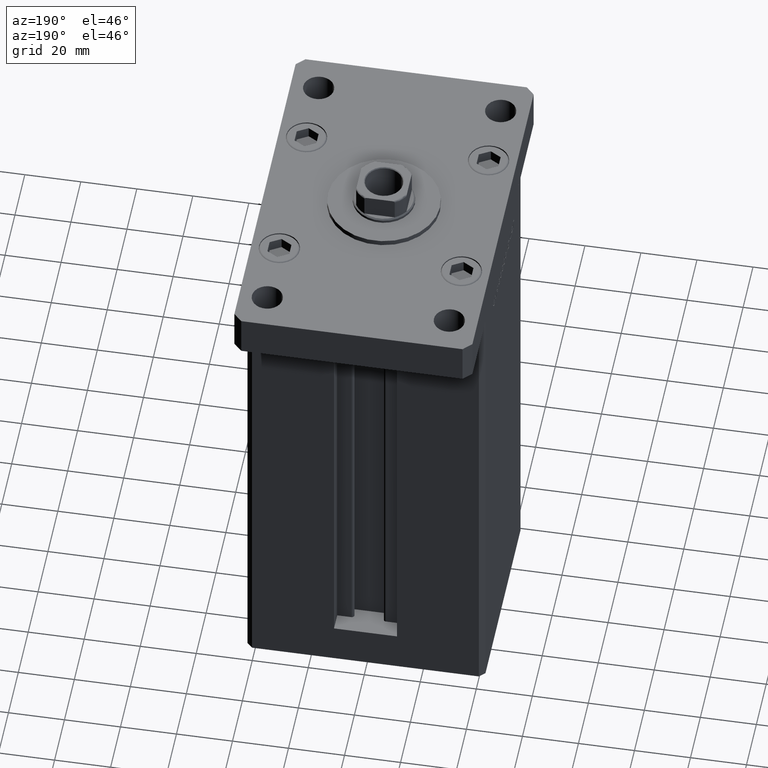
[diagram: clean part render]
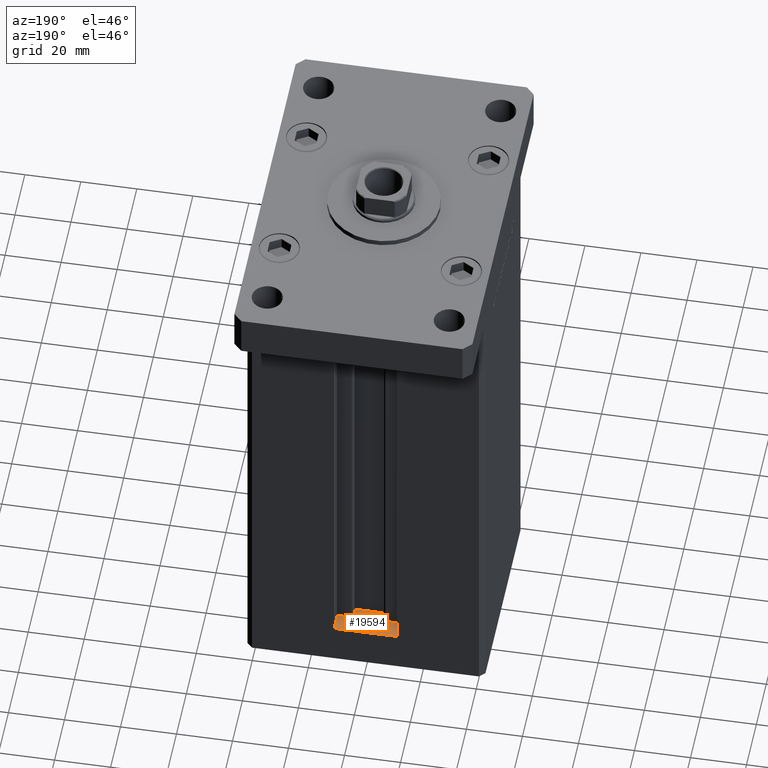
[diagram: same view with one face highlighted and labeled with its STEP entity id]
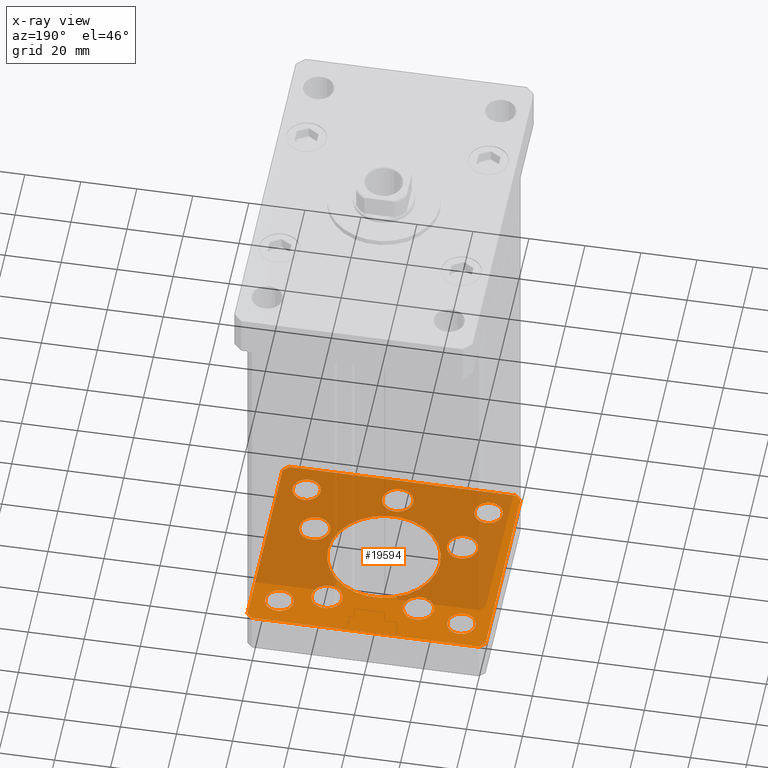
[diagram: x-ray of the same camera — body ghosted, the highlighted face saturated]
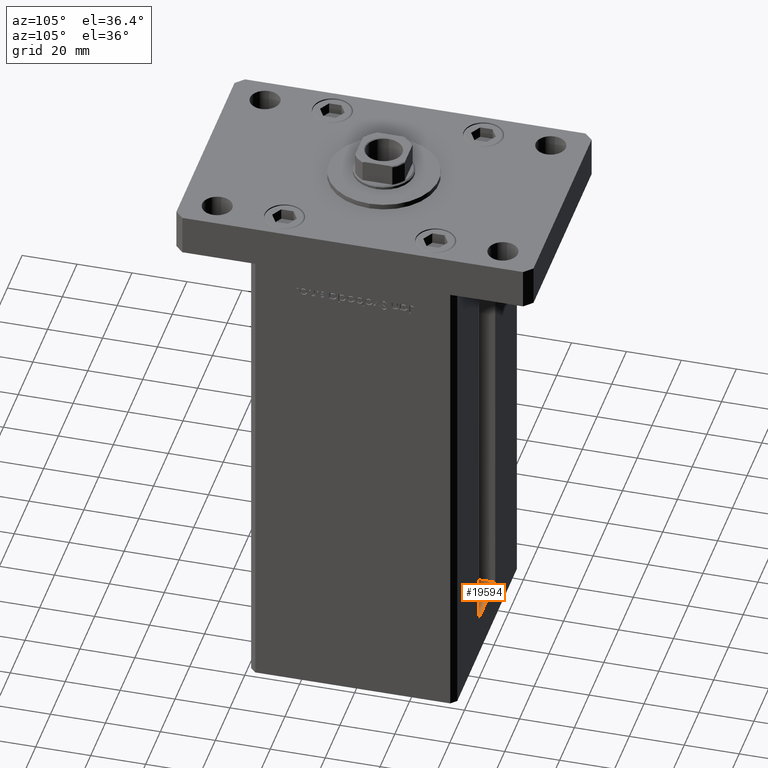
[diagram: same view with one face highlighted and labeled with its STEP entity id]
A machine part, auxiliary view. The second image highlights one B-rep face of the part: STEP entity #19594.
The next image is the same camera in x-ray: the body ghosted, the highlighted face saturated — about 68% of this face is hidden behind the body in this view.
A second angle (auxiliary view) of the same face is appended — the face is thin or edge-on in the first view.
In plain terms, the highlighted planar face has unit normal (0, 0, -1).
Its self-contained STEP definition (entity closure, byte-faithful):
#147 = VERTEX_POINT ( 'NONE', #16021 ) ;
#427 = EDGE_CURVE ( 'NONE', #16995, #45799, #1444, .T. ) ;
#432 = AXIS2_PLACEMENT_3D ( 'NONE', #31149, #31420, #2119 ) ;
#450 = VERTEX_POINT ( 'NONE', #6736 ) ;
#492 = CIRCLE ( 'NONE', #43827, 4.999999999999997335 ) ;
#873 = ORIENTED_EDGE ( 'NONE', *, *, #26478, .F. ) ;
#1297 = AXIS2_PLACEMENT_3D ( 'NONE', #34068, #20796, #4771 ) ;
#1443 = DIRECTION ( 'NONE',  ( 1.000000000000000000, 0.000000000000000000, 0.000000000000000000 ) ) ;
#1444 = CIRCLE ( 'NONE', #23116, 5.500000000000001776 ) ;
#1497 = CARTESIAN_POINT ( 'NONE',  ( 27.50000000000000355, 27.49999999999999645, -15.00000000000000000 ) ) ;
#1528 = DIRECTION ( 'NONE',  ( 0.000000000000000000, -0.000000000000000000, -1.000000000000000000 ) ) ;
#1797 = ORIENTED_EDGE ( 'NONE', *, *, #52713, .F. ) ;
#2100 = EDGE_CURVE ( 'NONE', #45799, #16995, #23155, .T. ) ;
#2101 = CARTESIAN_POINT ( 'NONE',  ( -26.39865316429776954, -9.333333333333337478, -15.00000000000000000 ) ) ;
#2119 = DIRECTION ( 'NONE',  ( 1.000000000000000000, 0.000000000000000000, 0.000000000000000000 ) ) ;
#2320 = DIRECTION ( 'NONE',  ( -1.000000000000000000, 0.000000000000000000, 0.000000000000000000 ) ) ;
#2337 = AXIS2_PLACEMENT_3D ( 'NONE', #48865, #14720, #40198 ) ;
#2943 = VERTEX_POINT ( 'NONE', #48568 ) ;
#3153 = CARTESIAN_POINT ( 'NONE',  ( 42.49999999999992895, 35.50000000000000000, -15.00000000000000000 ) ) ;
#3334 = DIRECTION ( 'NONE',  ( -0.000000000000000000, 0.000000000000000000, 1.000000000000000000 ) ) ;
#3369 = CIRCLE ( 'NONE', #44943, 5.500000000000000000 ) ;
#3441 = VERTEX_POINT ( 'NONE', #46771 ) ;
#3951 = CARTESIAN_POINT ( 'NONE',  ( -32.50000000000000000, -27.49999999999999645, -15.00000000000000000 ) ) ;
#4152 = AXIS2_PLACEMENT_3D ( 'NONE', #51744, #10786, #38731 ) ;
#4336 = CARTESIAN_POINT ( 'NONE',  ( 40.49999999999991473, 37.50000000000000711, -15.00000000000000000 ) ) ;
#4433 = EDGE_CURVE ( 'NONE', #39398, #47756, #27561, .T. ) ;
#4524 = EDGE_LOOP ( 'NONE', ( #32536, #25683 ) ) ;
#4771 = DIRECTION ( 'NONE',  ( 1.000000000000000000, 0.000000000000000000, 0.000000000000000000 ) ) ;
#5071 = CARTESIAN_POINT ( 'NONE',  ( -16.32291334290543006, 22.74999999999999645, -15.00000000000000000 ) ) ;
#5186 = CARTESIAN_POINT ( 'NONE',  ( 10.82291334290542473, 22.75000000000000000, -15.00000000000000000 ) ) ;
#5713 = ORIENTED_EDGE ( 'NONE', *, *, #23289, .F. ) ;
#5849 = CARTESIAN_POINT ( 'NONE',  ( -32.50000000000000000, -27.49999999999999645, -15.00000000000000000 ) ) ;
#6042 = LINE ( 'NONE', #30209, #12505 ) ;
#6119 = CIRCLE ( 'NONE', #36449, 20.00000000000000000 ) ;
#6601 = DIRECTION ( 'NONE',  ( 1.000000000000000000, 0.000000000000000000, 0.000000000000000000 ) ) ;
#6736 = CARTESIAN_POINT ( 'NONE',  ( -40.50000000000000711, 37.49999999999997868, -15.00000000000000000 ) ) ;
#6912 = DIRECTION ( 'NONE',  ( 0.000000000000000000, 0.000000000000000000, 1.000000000000000000 ) ) ;
#6953 = ORIENTED_EDGE ( 'NONE', *, *, #52180, .F. ) ;
#7028 = DIRECTION ( 'NONE',  ( 0.000000000000000000, -0.000000000000000000, -1.000000000000000000 ) ) ;
#7660 = DIRECTION ( 'NONE',  ( 0.000000000000000000, -0.000000000000000000, -1.000000000000000000 ) ) ;
#7697 = DIRECTION ( 'NONE',  ( 0.000000000000000000, -0.000000000000000000, -1.000000000000000000 ) ) ;
#7771 = ORIENTED_EDGE ( 'NONE', *, *, #16917, .F. ) ;
#7910 = VERTEX_POINT ( 'NONE', #33012 ) ;
#7991 = CIRCLE ( 'NONE', #38324, 5.000000000000004441 ) ;
#8004 = EDGE_CURVE ( 'NONE', #47206, #38161, #12938, .T. ) ;
#8165 = VERTEX_POINT ( 'NONE', #52752 ) ;
#8186 = CARTESIAN_POINT ( 'NONE',  ( -26.39865316429776954, -9.333333333333337478, -15.00000000000000000 ) ) ;
#8661 = DIRECTION ( 'NONE',  ( -1.000000000000000000, -3.426614273534436165E-16, 0.000000000000000000 ) ) ;
#9676 = EDGE_CURVE ( 'NONE', #147, #450, #45822, .T. ) ;
#9809 = CIRCLE ( 'NONE', #24578, 5.499999999999998224 ) ;
#9928 = ORIENTED_EDGE ( 'NONE', *, *, #34422, .F. ) ;
#10243 = CARTESIAN_POINT ( 'NONE',  ( 31.89865316429776954, -9.333333333333330373, -15.00000000000000000 ) ) ;
#10374 = CARTESIAN_POINT ( 'NONE',  ( 20.89865316429777309, -9.333333333333330373, -15.00000000000000000 ) ) ;
#10385 = CARTESIAN_POINT ( 'NONE',  ( -16.32291334290543006, 22.74999999999999645, -15.00000000000000000 ) ) ;
#10786 = DIRECTION ( 'NONE',  ( 0.000000000000000000, 0.000000000000000000, 1.000000000000000000 ) ) ;
#11337 = EDGE_CURVE ( 'NONE', #2943, #24173, #32003, .T. ) ;
#11377 = DIRECTION ( 'NONE',  ( 1.000000000000000000, 0.000000000000000000, 0.000000000000000000 ) ) ;
#11416 = AXIS2_PLACEMENT_3D ( 'NONE', #10385, #38344, #1443 ) ;
#11796 = VERTEX_POINT ( 'NONE', #38917 ) ;
#12505 = VECTOR ( 'NONE', #47274, 1000.000000000000000 ) ;
#12549 = VERTEX_POINT ( 'NONE', #47140 ) ;
#12776 = ORIENTED_EDGE ( 'NONE', *, *, #49173, .F. ) ;
#12882 = EDGE_LOOP ( 'NONE', ( #15474, #28263 ) ) ;
#12938 = CIRCLE ( 'NONE', #17292, 5.000000000000004441 ) ;
#13777 = EDGE_CURVE ( 'NONE', #51611, #38150, #47603, .T. ) ;
#13798 = ORIENTED_EDGE ( 'NONE', *, *, #45501, .F. ) ;
#13932 = FACE_BOUND ( 'NONE', #27931, .T. ) ;
#14427 = DIRECTION ( 'NONE',  ( -1.000000000000000000, 0.000000000000000000, 0.000000000000000000 ) ) ;
#14442 = DIRECTION ( 'NONE',  ( 0.7071067811865474617, 0.7071067811865474617, 0.000000000000000000 ) ) ;
#14455 = VECTOR ( 'NONE', #14442, 1000.000000000000114 ) ;
#14720 = DIRECTION ( 'NONE',  ( 0.000000000000000000, -0.000000000000000000, -1.000000000000000000 ) ) ;
#15029 = DIRECTION ( 'NONE',  ( 0.000000000000000000, -0.000000000000000000, -1.000000000000000000 ) ) ;
#15283 = FACE_BOUND ( 'NONE', #4524, .T. ) ;
#15391 = CARTESIAN_POINT ( 'NONE',  ( -20.89865316429777309, -9.333333333333337478, -15.00000000000000000 ) ) ;
#15474 = ORIENTED_EDGE ( 'NONE', *, *, #39434, .T. ) ;
#15883 = EDGE_CURVE ( 'NONE', #27578, #25756, #6119, .T. ) ;
#16021 = CARTESIAN_POINT ( 'NONE',  ( 40.49999999999991473, 37.50000000000000711, -15.00000000000000000 ) ) ;
#16083 = FACE_BOUND ( 'NONE', #12882, .T. ) ;
#16135 = ORIENTED_EDGE ( 'NONE', *, *, #427, .F. ) ;
#16221 = DIRECTION ( 'NONE',  ( 0.7071067811865463515, -0.7071067811865487940, 0.000000000000000000 ) ) ;
#16319 = ORIENTED_EDGE ( 'NONE', *, *, #20277, .F. ) ;
#16797 = AXIS2_PLACEMENT_3D ( 'NONE', #27550, #6912, #23220 ) ;
#16917 = EDGE_CURVE ( 'NONE', #3441, #147, #48717, .T. ) ;
#16995 = VERTEX_POINT ( 'NONE', #32447 ) ;
#17205 = EDGE_CURVE ( 'NONE', #450, #26405, #29039, .T. ) ;
#17287 = AXIS2_PLACEMENT_3D ( 'NONE', #8186, #7660, #36687 ) ;
#17292 = AXIS2_PLACEMENT_3D ( 'NONE', #5849, #22420, #2320 ) ;
#17884 = CARTESIAN_POINT ( 'NONE',  ( -40.49999999999999289, -37.50000000000002132, -15.00000000000000000 ) ) ;
#17943 = AXIS2_PLACEMENT_3D ( 'NONE', #45473, #41681, #33818 ) ;
#18194 = AXIS2_PLACEMENT_3D ( 'NONE', #29492, #1528, #29757 ) ;
#18322 = EDGE_LOOP ( 'NONE', ( #48473, #5713 ) ) ;
#18497 = DIRECTION ( 'NONE',  ( 1.000000000000000000, 0.000000000000000000, 0.000000000000000000 ) ) ;
#19594 = ADVANCED_FACE ( 'NONE', ( #34547, #51090, #13932, #19614, #32092, #20148, #16083, #15283, #40221, #36684, #48360 ), #19883, .F. ) ;
#19614 = FACE_BOUND ( 'NONE', #18322, .T. ) ;
#19883 = PLANE ( 'NONE',  #25020 ) ;
#20148 = FACE_BOUND ( 'NONE', #39181, .T. ) ;
#20161 = EDGE_CURVE ( 'NONE', #23029, #8165, #37900, .T. ) ;
#20277 = EDGE_CURVE ( 'NONE', #26350, #44030, #3369, .T. ) ;
#20649 = VECTOR ( 'NONE', #8661, 1000.000000000000000 ) ;
#20676 = VECTOR ( 'NONE', #16221, 1000.000000000000000 ) ;
#20796 = DIRECTION ( 'NONE',  ( 0.000000000000000000, 0.000000000000000000, 1.000000000000000000 ) ) ;
#21080 = EDGE_LOOP ( 'NONE', ( #22041, #13798, #50958, #51680, #7771, #49554, #52749, #12776 ) ) ;
#21513 = CARTESIAN_POINT ( 'NONE',  ( -42.50000000000000711, 35.49999999999997158, -15.00000000000000000 ) ) ;
#22041 = ORIENTED_EDGE ( 'NONE', *, *, #20161, .F. ) ;
#22048 = CARTESIAN_POINT ( 'NONE',  ( -42.50000000000000000, -35.50000000000000711, -15.00000000000000000 ) ) ;
#22279 = CARTESIAN_POINT ( 'NONE',  ( 5.500000000000003553, -28.00000000000000000, -15.00000000000000000 ) ) ;
#22318 = CARTESIAN_POINT ( 'NONE',  ( 32.50000000000000000, -27.49999999999999645, -15.00000000000000000 ) ) ;
#22420 = DIRECTION ( 'NONE',  ( -0.000000000000000000, -0.000000000000000000, -1.000000000000000000 ) ) ;
#22631 = CARTESIAN_POINT ( 'NONE',  ( -27.50000000000000000, 27.50000000000000355, -15.00000000000000000 ) ) ;
#23029 = VERTEX_POINT ( 'NONE', #22048 ) ;
#23116 = AXIS2_PLACEMENT_3D ( 'NONE', #31163, #30096, #30627 ) ;
#23155 = CIRCLE ( 'NONE', #17943, 5.500000000000001776 ) ;
#23220 = DIRECTION ( 'NONE',  ( 1.000000000000000000, 0.000000000000000000, 0.000000000000000000 ) ) ;
#23276 = CARTESIAN_POINT ( 'NONE',  ( -37.50000000000000711, -27.49999999999999645, -15.00000000000000000 ) ) ;
#23289 = EDGE_CURVE ( 'NONE', #52058, #28721, #40722, .T. ) ;
#23751 = EDGE_LOOP ( 'NONE', ( #25543, #52400 ) ) ;
#23799 = ORIENTED_EDGE ( 'NONE', *, *, #32409, .F. ) ;
#24173 = VERTEX_POINT ( 'NONE', #39231 ) ;
#24279 = CARTESIAN_POINT ( 'NONE',  ( 32.50000000000000000, -27.49999999999999645, -15.00000000000000000 ) ) ;
#24510 = CIRCLE ( 'NONE', #49575, 5.500000000000000000 ) ;
#24578 = AXIS2_PLACEMENT_3D ( 'NONE', #48533, #7028, #11377 ) ;
#24717 = ORIENTED_EDGE ( 'NONE', *, *, #35471, .F. ) ;
#25020 = AXIS2_PLACEMENT_3D ( 'NONE', #40486, #3334, #44295 ) ;
#25312 = CARTESIAN_POINT ( 'NONE',  ( -21.82291334290543361, 22.74999999999999645, -15.00000000000000000 ) ) ;
#25543 = ORIENTED_EDGE ( 'NONE', *, *, #13777, .F. ) ;
#25683 = ORIENTED_EDGE ( 'NONE', *, *, #4433, .T. ) ;
#25742 = CIRCLE ( 'NONE', #2337, 5.500000000000000000 ) ;
#25756 = VERTEX_POINT ( 'NONE', #29311 ) ;
#25934 = AXIS2_PLACEMENT_3D ( 'NONE', #22318, #51050, #14427 ) ;
#26075 = CIRCLE ( 'NONE', #45864, 20.00000000000000000 ) ;
#26350 = VERTEX_POINT ( 'NONE', #25312 ) ;
#26405 = VERTEX_POINT ( 'NONE', #21513 ) ;
#26478 = EDGE_CURVE ( 'NONE', #25756, #27578, #26075, .T. ) ;
#27218 = CIRCLE ( 'NONE', #16797, 4.999999999999997335 ) ;
#27550 = CARTESIAN_POINT ( 'NONE',  ( 32.50000000000000000, 27.49999999999999645, -15.00000000000000000 ) ) ;
#27561 = CIRCLE ( 'NONE', #4152, 5.000000000000000888 ) ;
#27578 = VERTEX_POINT ( 'NONE', #52858 ) ;
#27931 = EDGE_LOOP ( 'NONE', ( #6953, #24717 ) ) ;
#28035 = AXIS2_PLACEMENT_3D ( 'NONE', #2101, #35460, #51733 ) ;
#28057 = VERTEX_POINT ( 'NONE', #1497 ) ;
#28263 = ORIENTED_EDGE ( 'NONE', *, *, #41373, .T. ) ;
#28343 = DIRECTION ( 'NONE',  ( -1.000000000000000000, 0.000000000000000000, 0.000000000000000000 ) ) ;
#28382 = DIRECTION ( 'NONE',  ( -0.7071067811865474617, 0.7071067811865474617, 0.000000000000000000 ) ) ;
#28721 = VERTEX_POINT ( 'NONE', #10243 ) ;
#29039 = LINE ( 'NONE', #52196, #46003 ) ;
#29311 = CARTESIAN_POINT ( 'NONE',  ( 20.00000000000000000, 0.000000000000000000, -15.00000000000000000 ) ) ;
#29492 = CARTESIAN_POINT ( 'NONE',  ( 26.39865316429776954, -9.333333333333330373, -15.00000000000000000 ) ) ;
#29757 = DIRECTION ( 'NONE',  ( 1.000000000000000000, 0.000000000000000000, 0.000000000000000000 ) ) ;
#29929 = LINE ( 'NONE', #51334, #14455 ) ;
#30096 = DIRECTION ( 'NONE',  ( 0.000000000000000000, -0.000000000000000000, -1.000000000000000000 ) ) ;
#30209 = CARTESIAN_POINT ( 'NONE',  ( -42.50000000000000711, 35.49999999999997158, -15.00000000000000000 ) ) ;
#30627 = DIRECTION ( 'NONE',  ( 1.000000000000000000, 0.000000000000000000, 0.000000000000000000 ) ) ;
#30797 = CARTESIAN_POINT ( 'NONE',  ( -37.50000000000000711, 27.50000000000000355, -15.00000000000000000 ) ) ;
#31149 = CARTESIAN_POINT ( 'NONE',  ( -32.50000000000000000, 27.50000000000000355, -15.00000000000000000 ) ) ;
#31163 = CARTESIAN_POINT ( 'NONE',  ( 16.32291334290542295, 22.75000000000000000, -15.00000000000000000 ) ) ;
#31306 = EDGE_CURVE ( 'NONE', #33467, #3441, #49856, .T. ) ;
#31420 = DIRECTION ( 'NONE',  ( 0.000000000000000000, 0.000000000000000000, 1.000000000000000000 ) ) ;
#31778 = DIRECTION ( 'NONE',  ( 0.000000000000000000, -0.000000000000000000, -1.000000000000000000 ) ) ;
#31878 = DIRECTION ( 'NONE',  ( -0.000000000000000000, -0.000000000000000000, -1.000000000000000000 ) ) ;
#32003 = CIRCLE ( 'NONE', #25934, 4.999999999999997335 ) ;
#32092 = FACE_BOUND ( 'NONE', #41326, .T. ) ;
#32136 = CARTESIAN_POINT ( 'NONE',  ( 3.429011037612589276E-15, -28.00000000000000000, -15.00000000000000000 ) ) ;
#32401 = DIRECTION ( 'NONE',  ( 1.000000000000000000, 0.000000000000000000, 0.000000000000000000 ) ) ;
#32409 = EDGE_CURVE ( 'NONE', #44030, #26350, #35655, .T. ) ;
#32447 = CARTESIAN_POINT ( 'NONE',  ( 21.82291334290542650, 22.75000000000000000, -15.00000000000000000 ) ) ;
#32536 = ORIENTED_EDGE ( 'NONE', *, *, #46228, .T. ) ;
#32696 = EDGE_LOOP ( 'NONE', ( #873, #33889 ) ) ;
#33012 = CARTESIAN_POINT ( 'NONE',  ( -5.499999999999996447, -28.00000000000000000, -15.00000000000000000 ) ) ;
#33467 = VERTEX_POINT ( 'NONE', #44484 ) ;
#33590 = DIRECTION ( 'NONE',  ( -1.172770800660376741E-15, 1.000000000000000000, 0.000000000000000000 ) ) ;
#33818 = DIRECTION ( 'NONE',  ( 1.000000000000000000, 0.000000000000000000, 0.000000000000000000 ) ) ;
#33889 = ORIENTED_EDGE ( 'NONE', *, *, #15883, .F. ) ;
#34068 = CARTESIAN_POINT ( 'NONE',  ( 32.50000000000000000, 27.49999999999999645, -15.00000000000000000 ) ) ;
#34422 = EDGE_CURVE ( 'NONE', #38161, #47206, #7991, .T. ) ;
#34427 = DIRECTION ( 'NONE',  ( 1.000000000000000000, 1.713307136767217096E-16, 0.000000000000000000 ) ) ;
#34547 = FACE_BOUND ( 'NONE', #32696, .T. ) ;
#35460 = DIRECTION ( 'NONE',  ( 0.000000000000000000, -0.000000000000000000, -1.000000000000000000 ) ) ;
#35471 = EDGE_CURVE ( 'NONE', #7910, #45846, #24510, .T. ) ;
#35655 = CIRCLE ( 'NONE', #11416, 5.500000000000000000 ) ;
#35840 = CIRCLE ( 'NONE', #28035, 5.499999999999998224 ) ;
#36449 = AXIS2_PLACEMENT_3D ( 'NONE', #39708, #48379, #47580 ) ;
#36684 = FACE_BOUND ( 'NONE', #45467, .T. ) ;
#36687 = DIRECTION ( 'NONE',  ( 1.000000000000000000, 0.000000000000000000, 0.000000000000000000 ) ) ;
#37900 = LINE ( 'NONE', #53358, #20676 ) ;
#37906 = EDGE_CURVE ( 'NONE', #28721, #52058, #9809, .T. ) ;
#38150 = VERTEX_POINT ( 'NONE', #39260 ) ;
#38161 = VERTEX_POINT ( 'NONE', #23276 ) ;
#38172 = EDGE_CURVE ( 'NONE', #38150, #51611, #35840, .T. ) ;
#38324 = AXIS2_PLACEMENT_3D ( 'NONE', #3951, #46525, #49781 ) ;
#38344 = DIRECTION ( 'NONE',  ( 0.000000000000000000, -0.000000000000000000, -1.000000000000000000 ) ) ;
#38731 = DIRECTION ( 'NONE',  ( 1.000000000000000000, 0.000000000000000000, 0.000000000000000000 ) ) ;
#38917 = CARTESIAN_POINT ( 'NONE',  ( 40.50000000000000000, -37.50000000000000711, -15.00000000000000000 ) ) ;
#39181 = EDGE_LOOP ( 'NONE', ( #23799, #16319 ) ) ;
#39231 = CARTESIAN_POINT ( 'NONE',  ( 37.50000000000000000, -27.49999999999999645, -15.00000000000000000 ) ) ;
#39260 = CARTESIAN_POINT ( 'NONE',  ( -31.89865316429776954, -9.333333333333337478, -15.00000000000000000 ) ) ;
#39398 = VERTEX_POINT ( 'NONE', #30797 ) ;
#39434 = EDGE_CURVE ( 'NONE', #12549, #28057, #27218, .T. ) ;
#39708 = CARTESIAN_POINT ( 'NONE',  ( 0.000000000000000000, 0.000000000000000000, -15.00000000000000000 ) ) ;
#39987 = DIRECTION ( 'NONE',  ( -0.7071067811865463515, -0.7071067811865487940, 0.000000000000000000 ) ) ;
#40198 = DIRECTION ( 'NONE',  ( 1.000000000000000000, 0.000000000000000000, 0.000000000000000000 ) ) ;
#40221 = FACE_OUTER_BOUND ( 'NONE', #21080, .T. ) ;
#40486 = CARTESIAN_POINT ( 'NONE',  ( 0.000000000000000000, 0.000000000000000000, -15.00000000000000000 ) ) ;
#40722 = CIRCLE ( 'NONE', #18194, 5.499999999999998224 ) ;
#41326 = EDGE_LOOP ( 'NONE', ( #16135, #43979 ) ) ;
#41373 = EDGE_CURVE ( 'NONE', #28057, #12549, #48918, .T. ) ;
#41681 = DIRECTION ( 'NONE',  ( 0.000000000000000000, -0.000000000000000000, -1.000000000000000000 ) ) ;
#41692 = CARTESIAN_POINT ( 'NONE',  ( -27.50000000000000000, -27.49999999999999645, -15.00000000000000000 ) ) ;
#43827 = AXIS2_PLACEMENT_3D ( 'NONE', #24279, #31878, #28343 ) ;
#43979 = ORIENTED_EDGE ( 'NONE', *, *, #2100, .F. ) ;
#44030 = VERTEX_POINT ( 'NONE', #51466 ) ;
#44295 = DIRECTION ( 'NONE',  ( 1.000000000000000000, 0.000000000000000000, 0.000000000000000000 ) ) ;
#44484 = CARTESIAN_POINT ( 'NONE',  ( 42.50000000000000711, -35.50000000000000000, -15.00000000000000000 ) ) ;
#44943 = AXIS2_PLACEMENT_3D ( 'NONE', #5071, #15029, #6601 ) ;
#45459 = CIRCLE ( 'NONE', #432, 5.000000000000000888 ) ;
#45467 = EDGE_LOOP ( 'NONE', ( #1797, #48936 ) ) ;
#45473 = CARTESIAN_POINT ( 'NONE',  ( 16.32291334290542295, 22.75000000000000000, -15.00000000000000000 ) ) ;
#45501 = EDGE_CURVE ( 'NONE', #26405, #23029, #6042, .T. ) ;
#45799 = VERTEX_POINT ( 'NONE', #5186 ) ;
#45822 = LINE ( 'NONE', #4336, #20649 ) ;
#45846 = VERTEX_POINT ( 'NONE', #22279 ) ;
#45864 = AXIS2_PLACEMENT_3D ( 'NONE', #51842, #31778, #18497 ) ;
#46003 = VECTOR ( 'NONE', #39987, 1000.000000000000000 ) ;
#46228 = EDGE_CURVE ( 'NONE', #47756, #39398, #45459, .T. ) ;
#46434 = VECTOR ( 'NONE', #34427, 1000.000000000000000 ) ;
#46525 = DIRECTION ( 'NONE',  ( -0.000000000000000000, -0.000000000000000000, -1.000000000000000000 ) ) ;
#46598 = CARTESIAN_POINT ( 'NONE',  ( 42.50000000000000711, -35.50000000000000000, -15.00000000000000000 ) ) ;
#46771 = CARTESIAN_POINT ( 'NONE',  ( 42.49999999999992895, 35.50000000000000000, -15.00000000000000000 ) ) ;
#47140 = CARTESIAN_POINT ( 'NONE',  ( 37.50000000000000000, 27.49999999999999645, -15.00000000000000000 ) ) ;
#47206 = VERTEX_POINT ( 'NONE', #41692 ) ;
#47274 = DIRECTION ( 'NONE',  ( 9.773090005503140331E-17, -1.000000000000000000, 0.000000000000000000 ) ) ;
#47580 = DIRECTION ( 'NONE',  ( 1.000000000000000000, 0.000000000000000000, 0.000000000000000000 ) ) ;
#47603 = CIRCLE ( 'NONE', #17287, 5.499999999999998224 ) ;
#47748 = VECTOR ( 'NONE', #28382, 1000.000000000000114 ) ;
#47756 = VERTEX_POINT ( 'NONE', #22631 ) ;
#48360 = FACE_BOUND ( 'NONE', #49764, .T. ) ;
#48379 = DIRECTION ( 'NONE',  ( 0.000000000000000000, -0.000000000000000000, -1.000000000000000000 ) ) ;
#48473 = ORIENTED_EDGE ( 'NONE', *, *, #37906, .F. ) ;
#48533 = CARTESIAN_POINT ( 'NONE',  ( 26.39865316429776954, -9.333333333333330373, -15.00000000000000000 ) ) ;
#48568 = CARTESIAN_POINT ( 'NONE',  ( 27.50000000000000355, -27.49999999999999645, -15.00000000000000000 ) ) ;
#48717 = LINE ( 'NONE', #3153, #47748 ) ;
#48865 = CARTESIAN_POINT ( 'NONE',  ( 3.429011037612589276E-15, -28.00000000000000000, -15.00000000000000000 ) ) ;
#48918 = CIRCLE ( 'NONE', #1297, 4.999999999999997335 ) ;
#48936 = ORIENTED_EDGE ( 'NONE', *, *, #11337, .F. ) ;
#49173 = EDGE_CURVE ( 'NONE', #8165, #11796, #50166, .T. ) ;
#49554 = ORIENTED_EDGE ( 'NONE', *, *, #31306, .F. ) ;
#49575 = AXIS2_PLACEMENT_3D ( 'NONE', #32136, #7697, #32401 ) ;
#49764 = EDGE_LOOP ( 'NONE', ( #50553, #9928 ) ) ;
#49781 = DIRECTION ( 'NONE',  ( -1.000000000000000000, 0.000000000000000000, 0.000000000000000000 ) ) ;
#49856 = LINE ( 'NONE', #46598, #52074 ) ;
#50166 = LINE ( 'NONE', #17884, #46434 ) ;
#50553 = ORIENTED_EDGE ( 'NONE', *, *, #8004, .F. ) ;
#50958 = ORIENTED_EDGE ( 'NONE', *, *, #17205, .F. ) ;
#51050 = DIRECTION ( 'NONE',  ( -0.000000000000000000, -0.000000000000000000, -1.000000000000000000 ) ) ;
#51090 = FACE_BOUND ( 'NONE', #23751, .T. ) ;
#51334 = CARTESIAN_POINT ( 'NONE',  ( 40.50000000000000000, -37.50000000000000711, -15.00000000000000000 ) ) ;
#51466 = CARTESIAN_POINT ( 'NONE',  ( -10.82291334290543183, 22.74999999999999645, -15.00000000000000000 ) ) ;
#51611 = VERTEX_POINT ( 'NONE', #15391 ) ;
#51680 = ORIENTED_EDGE ( 'NONE', *, *, #9676, .F. ) ;
#51733 = DIRECTION ( 'NONE',  ( 1.000000000000000000, 0.000000000000000000, 0.000000000000000000 ) ) ;
#51744 = CARTESIAN_POINT ( 'NONE',  ( -32.50000000000000000, 27.50000000000000355, -15.00000000000000000 ) ) ;
#51842 = CARTESIAN_POINT ( 'NONE',  ( 0.000000000000000000, 0.000000000000000000, -15.00000000000000000 ) ) ;
#52056 = EDGE_CURVE ( 'NONE', #11796, #33467, #29929, .T. ) ;
#52058 = VERTEX_POINT ( 'NONE', #10374 ) ;
#52074 = VECTOR ( 'NONE', #33590, 1000.000000000000000 ) ;
#52180 = EDGE_CURVE ( 'NONE', #45846, #7910, #25742, .T. ) ;
#52196 = CARTESIAN_POINT ( 'NONE',  ( -40.50000000000000711, 37.49999999999997868, -15.00000000000000000 ) ) ;
#52400 = ORIENTED_EDGE ( 'NONE', *, *, #38172, .F. ) ;
#52713 = EDGE_CURVE ( 'NONE', #24173, #2943, #492, .T. ) ;
#52749 = ORIENTED_EDGE ( 'NONE', *, *, #52056, .F. ) ;
#52752 = CARTESIAN_POINT ( 'NONE',  ( -40.49999999999999289, -37.50000000000002132, -15.00000000000000000 ) ) ;
#52858 = CARTESIAN_POINT ( 'NONE',  ( -20.00000000000000000, 2.449293598294706513E-15, -15.00000000000000000 ) ) ;
#53358 = CARTESIAN_POINT ( 'NONE',  ( -42.50000000000000000, -35.50000000000000711, -15.00000000000000000 ) ) ;